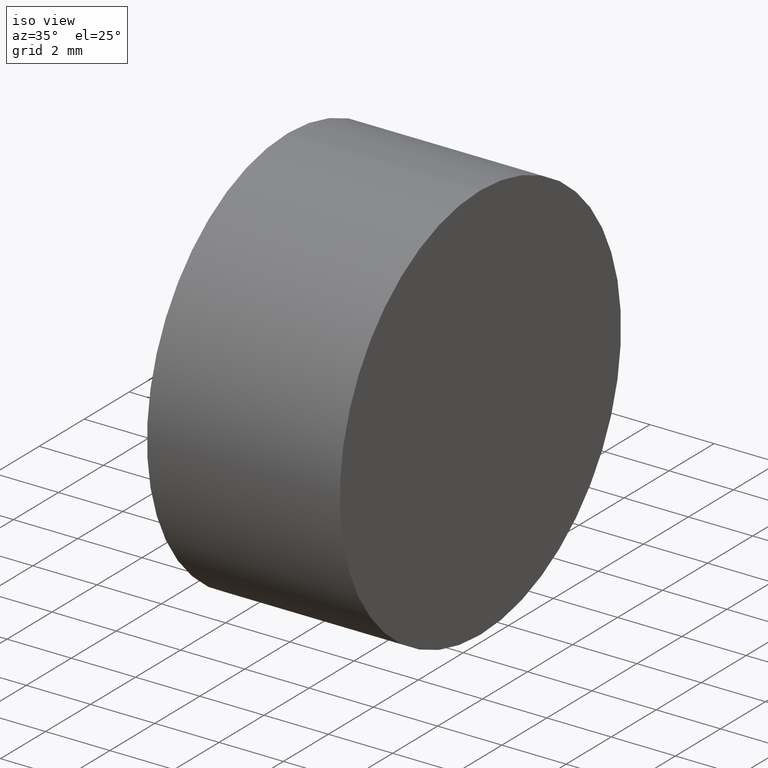
[diagram: clean part render]
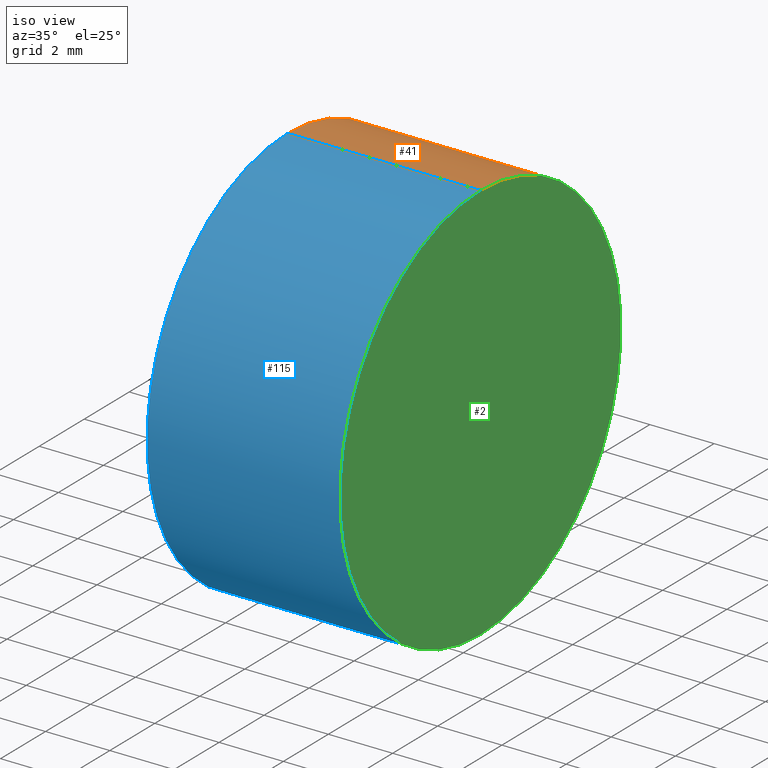
[diagram: same view with three faces highlighted in distinct colors, each labeled with its STEP entity id]
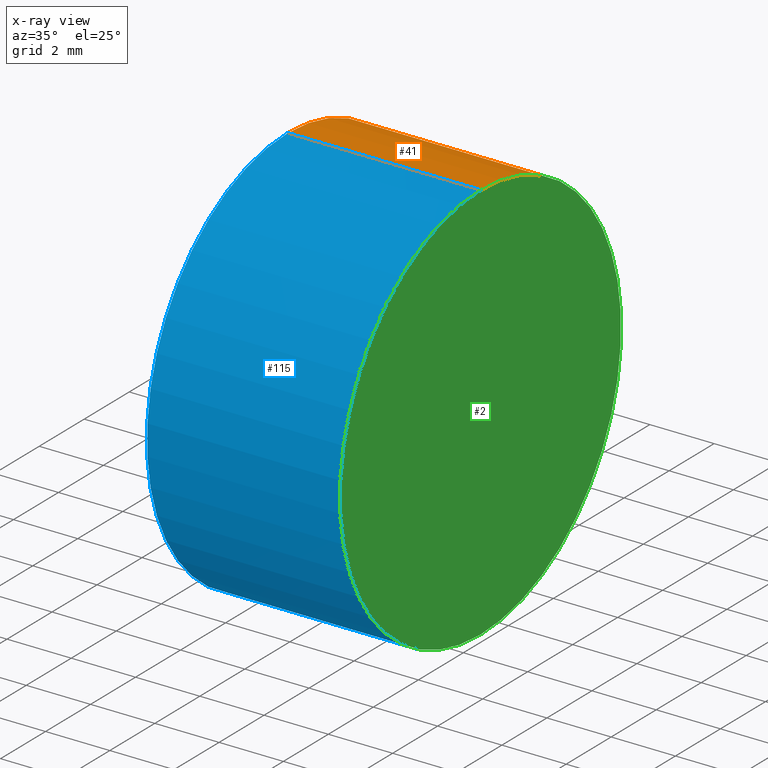
[diagram: x-ray of the same camera — body ghosted, the three highlighted faces saturated]
A machine part, iso view with three faces highlighted in distinct colors.
The next image is the same camera in x-ray (body ghosted, the three faces saturated) — at least one of them is partly hidden behind the body in this view.
Their STEP definitions:

[orange] entity #41 — the highlighted cylindrical surface (partial cylindrical patch) has radius 6.25 mm, axis along (-1, -0, -0).
#4 = CARTESIAN_POINT ( 'NONE',  ( 127.0004009963080200, 38.64658967450770900, -6.249999999999992000 ) ) ;
#6 = AXIS2_PLACEMENT_3D ( 'NONE', #125, #117, #66 ) ;
#11 = EDGE_CURVE ( 'NONE', #58, #94, #19, .T. ) ;
#16 = EDGE_CURVE ( 'NONE', #131, #63, #113, .T. ) ;
#18 = CARTESIAN_POINT ( 'NONE',  ( 136.0785702462804900, 38.64658967450770900, -6.249999999999992000 ) ) ;
#19 = CIRCLE ( 'NONE', #6, 6.249999999999992000 ) ;
#20 = DIRECTION ( 'NONE',  ( -1.000000000000000000, -0.0000000000000000000, -0.0000000000000000000 ) ) ;
#31 = DIRECTION ( 'NONE',  ( 0.0000000000000000000, 0.0000000000000000000, 1.000000000000000000 ) ) ;
#32 = CARTESIAN_POINT ( 'NONE',  ( 136.0785702462804900, 38.64658967450770900, 6.249999999999992000 ) ) ;
#33 = EDGE_CURVE ( 'NONE', #58, #131, #96, .T. ) ;
#35 = ORIENTED_EDGE ( 'NONE', *, *, #57, .T. ) ;
#38 = AXIS2_PLACEMENT_3D ( 'NONE', #87, #20, #61 ) ;
#41 = ADVANCED_FACE ( 'NONE', ( #82 ), #65, .T. ) ;
#55 = AXIS2_PLACEMENT_3D ( 'NONE', #135, #109, #31 ) ;
#57 = EDGE_CURVE ( 'NONE', #94, #63, #127, .T. ) ;
#58 = VERTEX_POINT ( 'NONE', #32 ) ;
#61 = DIRECTION ( 'NONE',  ( 0.0000000000000000000, 0.0000000000000000000, 1.000000000000000000 ) ) ;
#63 = VERTEX_POINT ( 'NONE', #133 ) ;
#65 = CYLINDRICAL_SURFACE ( 'NONE', #55, 6.249999999999992000 ) ;
#66 = DIRECTION ( 'NONE',  ( 0.0000000000000000000, 0.0000000000000000000, 1.000000000000000000 ) ) ;
#76 = DIRECTION ( 'NONE',  ( -1.000000000000000000, -0.0000000000000000000, -0.0000000000000000000 ) ) ;
#82 = FACE_OUTER_BOUND ( 'NONE', #129, .T. ) ;
#84 = DIRECTION ( 'NONE',  ( -1.000000000000000000, -0.0000000000000000000, -0.0000000000000000000 ) ) ;
#86 = ORIENTED_EDGE ( 'NONE', *, *, #11, .T. ) ;
#87 = CARTESIAN_POINT ( 'NONE',  ( 130.0785702462804900, 38.64658967450770900, 0.0000000000000000000 ) ) ;
#88 = CARTESIAN_POINT ( 'NONE',  ( 127.0004009963080200, 38.64658967450770900, 6.249999999999992000 ) ) ;
#94 = VERTEX_POINT ( 'NONE', #18 ) ;
#96 = LINE ( 'NONE', #88, #107 ) ;
#107 = VECTOR ( 'NONE', #84, 1000.000000000000000 ) ;
#109 = DIRECTION ( 'NONE',  ( -1.000000000000000000, -0.0000000000000000000, -0.0000000000000000000 ) ) ;
#111 = CARTESIAN_POINT ( 'NONE',  ( 130.0785702462804900, 38.64658967450770900, 6.249999999999992000 ) ) ;
#113 = CIRCLE ( 'NONE', #38, 6.249999999999992000 ) ;
#117 = DIRECTION ( 'NONE',  ( -1.000000000000000000, -0.0000000000000000000, -0.0000000000000000000 ) ) ;
#121 = ORIENTED_EDGE ( 'NONE', *, *, #16, .F. ) ;
#125 = CARTESIAN_POINT ( 'NONE',  ( 136.0785702462804900, 38.64658967450770900, 0.0000000000000000000 ) ) ;
#127 = LINE ( 'NONE', #4, #139 ) ;
#129 = EDGE_LOOP ( 'NONE', ( #86, #35, #121, #136 ) ) ;
#131 = VERTEX_POINT ( 'NONE', #111 ) ;
#133 = CARTESIAN_POINT ( 'NONE',  ( 130.0785702462804900, 38.64658967450770900, -6.249999999999992000 ) ) ;
#135 = CARTESIAN_POINT ( 'NONE',  ( 127.0004009963080200, 38.64658967450770900, 0.0000000000000000000 ) ) ;
#136 = ORIENTED_EDGE ( 'NONE', *, *, #33, .F. ) ;
#139 = VECTOR ( 'NONE', #76, 1000.000000000000000 ) ;

[blue] entity #115 — the highlighted cylindrical surface (partial cylindrical patch) has radius 6.25 mm, axis along (-1, -0, -0).
#1 = ORIENTED_EDGE ( 'NONE', *, *, #33, .T. ) ;
#4 = CARTESIAN_POINT ( 'NONE',  ( 127.0004009963080200, 38.64658967450770900, -6.249999999999992000 ) ) ;
#8 = EDGE_LOOP ( 'NONE', ( #81, #43, #1, #60 ) ) ;
#10 = CARTESIAN_POINT ( 'NONE',  ( 130.0785702462804900, 38.64658967450770900, 0.0000000000000000000 ) ) ;
#13 = CIRCLE ( 'NONE', #70, 6.249999999999992000 ) ;
#18 = CARTESIAN_POINT ( 'NONE',  ( 136.0785702462804900, 38.64658967450770900, -6.249999999999992000 ) ) ;
#22 = DIRECTION ( 'NONE',  ( 0.0000000000000000000, 0.0000000000000000000, 1.000000000000000000 ) ) ;
#24 = DIRECTION ( 'NONE',  ( 0.0000000000000000000, 0.0000000000000000000, 1.000000000000000000 ) ) ;
#32 = CARTESIAN_POINT ( 'NONE',  ( 136.0785702462804900, 38.64658967450770900, 6.249999999999992000 ) ) ;
#33 = EDGE_CURVE ( 'NONE', #58, #131, #96, .T. ) ;
#43 = ORIENTED_EDGE ( 'NONE', *, *, #137, .T. ) ;
#44 = AXIS2_PLACEMENT_3D ( 'NONE', #10, #89, #24 ) ;
#50 = DIRECTION ( 'NONE',  ( -1.000000000000000000, -0.0000000000000000000, -0.0000000000000000000 ) ) ;
#54 = FACE_OUTER_BOUND ( 'NONE', #8, .T. ) ;
#57 = EDGE_CURVE ( 'NONE', #94, #63, #127, .T. ) ;
#58 = VERTEX_POINT ( 'NONE', #32 ) ;
#60 = ORIENTED_EDGE ( 'NONE', *, *, #95, .F. ) ;
#63 = VERTEX_POINT ( 'NONE', #133 ) ;
#70 = AXIS2_PLACEMENT_3D ( 'NONE', #90, #91, #22 ) ;
#73 = CIRCLE ( 'NONE', #44, 6.249999999999992000 ) ;
#76 = DIRECTION ( 'NONE',  ( -1.000000000000000000, -0.0000000000000000000, -0.0000000000000000000 ) ) ;
#81 = ORIENTED_EDGE ( 'NONE', *, *, #57, .F. ) ;
#84 = DIRECTION ( 'NONE',  ( -1.000000000000000000, -0.0000000000000000000, -0.0000000000000000000 ) ) ;
#85 = AXIS2_PLACEMENT_3D ( 'NONE', #101, #50, #92 ) ;
#88 = CARTESIAN_POINT ( 'NONE',  ( 127.0004009963080200, 38.64658967450770900, 6.249999999999992000 ) ) ;
#89 = DIRECTION ( 'NONE',  ( -1.000000000000000000, -0.0000000000000000000, -0.0000000000000000000 ) ) ;
#90 = CARTESIAN_POINT ( 'NONE',  ( 136.0785702462804900, 38.64658967450770900, 0.0000000000000000000 ) ) ;
#91 = DIRECTION ( 'NONE',  ( -1.000000000000000000, -0.0000000000000000000, -0.0000000000000000000 ) ) ;
#92 = DIRECTION ( 'NONE',  ( 0.0000000000000000000, 0.0000000000000000000, 1.000000000000000000 ) ) ;
#94 = VERTEX_POINT ( 'NONE', #18 ) ;
#95 = EDGE_CURVE ( 'NONE', #63, #131, #73, .T. ) ;
#96 = LINE ( 'NONE', #88, #107 ) ;
#101 = CARTESIAN_POINT ( 'NONE',  ( 127.0004009963080200, 38.64658967450770900, 0.0000000000000000000 ) ) ;
#104 = CYLINDRICAL_SURFACE ( 'NONE', #85, 6.249999999999992000 ) ;
#107 = VECTOR ( 'NONE', #84, 1000.000000000000000 ) ;
#111 = CARTESIAN_POINT ( 'NONE',  ( 130.0785702462804900, 38.64658967450770900, 6.249999999999992000 ) ) ;
#115 = ADVANCED_FACE ( 'NONE', ( #54 ), #104, .T. ) ;
#127 = LINE ( 'NONE', #4, #139 ) ;
#131 = VERTEX_POINT ( 'NONE', #111 ) ;
#133 = CARTESIAN_POINT ( 'NONE',  ( 130.0785702462804900, 38.64658967450770900, -6.249999999999992000 ) ) ;
#137 = EDGE_CURVE ( 'NONE', #94, #58, #13, .T. ) ;
#139 = VECTOR ( 'NONE', #76, 1000.000000000000000 ) ;

[green] entity #2 — the highlighted planar face has unit normal (-1, 0, -0).
#2 = ADVANCED_FACE ( 'NONE', ( #108 ), #126, .F. ) ;
#3 = ORIENTED_EDGE ( 'NONE', *, *, #11, .F. ) ;
#5 = DIRECTION ( 'NONE',  ( -1.000000000000000000, 0.0000000000000000000, -0.0000000000000000000 ) ) ;
#6 = AXIS2_PLACEMENT_3D ( 'NONE', #125, #117, #66 ) ;
#11 = EDGE_CURVE ( 'NONE', #58, #94, #19, .T. ) ;
#13 = CIRCLE ( 'NONE', #70, 6.249999999999992000 ) ;
#18 = CARTESIAN_POINT ( 'NONE',  ( 136.0785702462804900, 38.64658967450770900, -6.249999999999992000 ) ) ;
#19 = CIRCLE ( 'NONE', #6, 6.249999999999992000 ) ;
#22 = DIRECTION ( 'NONE',  ( 0.0000000000000000000, 0.0000000000000000000, 1.000000000000000000 ) ) ;
#32 = CARTESIAN_POINT ( 'NONE',  ( 136.0785702462804900, 38.64658967450770900, 6.249999999999992000 ) ) ;
#40 = ORIENTED_EDGE ( 'NONE', *, *, #137, .F. ) ;
#58 = VERTEX_POINT ( 'NONE', #32 ) ;
#66 = DIRECTION ( 'NONE',  ( 0.0000000000000000000, 0.0000000000000000000, 1.000000000000000000 ) ) ;
#70 = AXIS2_PLACEMENT_3D ( 'NONE', #90, #91, #22 ) ;
#90 = CARTESIAN_POINT ( 'NONE',  ( 136.0785702462804900, 38.64658967450770900, 0.0000000000000000000 ) ) ;
#91 = DIRECTION ( 'NONE',  ( -1.000000000000000000, -0.0000000000000000000, -0.0000000000000000000 ) ) ;
#94 = VERTEX_POINT ( 'NONE', #18 ) ;
#106 = DIRECTION ( 'NONE',  ( -0.0000000000000000000, 0.0000000000000000000, 1.000000000000000000 ) ) ;
#108 = FACE_OUTER_BOUND ( 'NONE', #134, .T. ) ;
#117 = DIRECTION ( 'NONE',  ( -1.000000000000000000, -0.0000000000000000000, -0.0000000000000000000 ) ) ;
#118 = CARTESIAN_POINT ( 'NONE',  ( 136.0785702462804900, 38.64658967450770200, 0.0000000000000000000 ) ) ;
#123 = AXIS2_PLACEMENT_3D ( 'NONE', #118, #5, #106 ) ;
#125 = CARTESIAN_POINT ( 'NONE',  ( 136.0785702462804900, 38.64658967450770900, 0.0000000000000000000 ) ) ;
#126 = PLANE ( 'NONE',  #123 ) ;
#134 = EDGE_LOOP ( 'NONE', ( #3, #40 ) ) ;
#137 = EDGE_CURVE ( 'NONE', #94, #58, #13, .T. ) ;